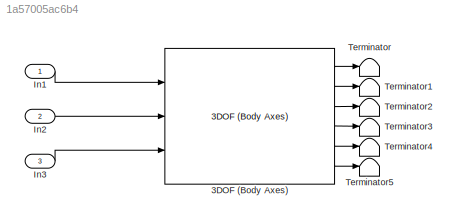
MODEL slx_1a57005ac6b4
KIND model
CONFIG AbsTol = auto
CONFIG EnableMultiTasking = off
CONFIG FixedStep = auto
CONFIG MaxStep = auto
CONFIG MinStep = auto
CONFIG RelTol = 1e-3
CONFIG SampleTimeConstraint = Unconstrained
CONFIG Solver = VariableStepAuto
CONFIG SolverName = VariableStepAuto
CONFIG StartTime = 0.0
CONFIG StopTime = 10.0
BLOCK [Reference] 3DOF (Body Axes)  REF=shared3dof/3DOF (Body Axes)
  Ports = [3, 6]
  SourceBlock = shared3dof/3DOF (Body Axes)
  SourceProductBaseCode = AE
  SourceProductName = Aerospace Blockset
  SourceType = 3DOF EoM
BLOCK [Inport] In1
  IconDisplay = Port number
BLOCK [Inport] In2
  IconDisplay = Port number
  Port = 2
BLOCK [Inport] In3
  IconDisplay = Port number
  Port = 3
BLOCK [Terminator] Terminator
BLOCK [Terminator] Terminator1
BLOCK [Terminator] Terminator2
BLOCK [Terminator] Terminator3
BLOCK [Terminator] Terminator4
BLOCK [Terminator] Terminator5
LINE 3DOF (Body Axes):1 -> Terminator:1
LINE 3DOF (Body Axes):2 -> Terminator1:1
LINE 3DOF (Body Axes):3 -> Terminator2:1
LINE 3DOF (Body Axes):4 -> Terminator3:1
LINE 3DOF (Body Axes):5 -> Terminator4:1
LINE 3DOF (Body Axes):6 -> Terminator5:1
LINE In1:1 -> 3DOF (Body Axes):1
LINE In2:1 -> 3DOF (Body Axes):2
LINE In3:1 -> 3DOF (Body Axes):3
